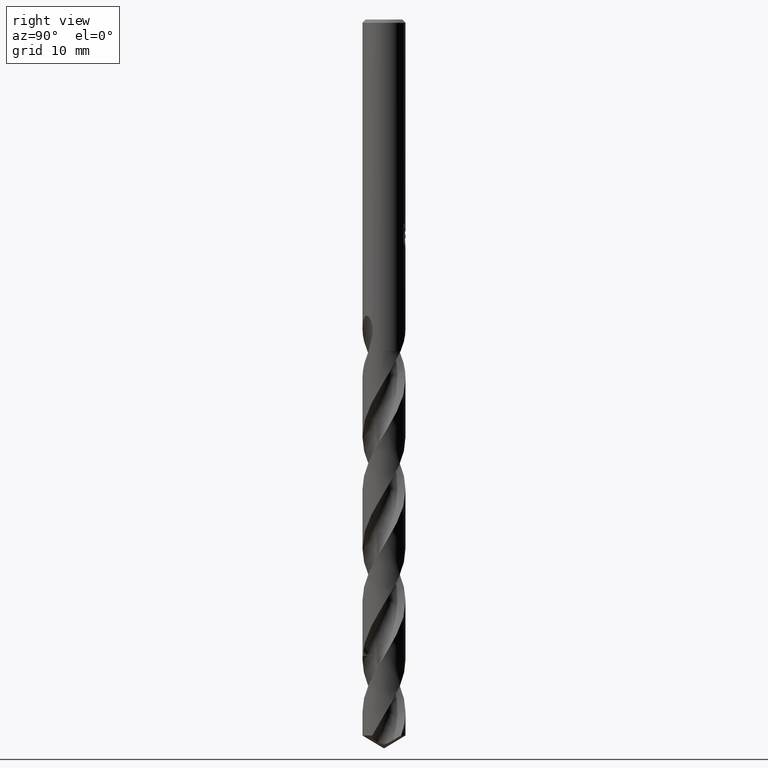
[diagram: clean part render]
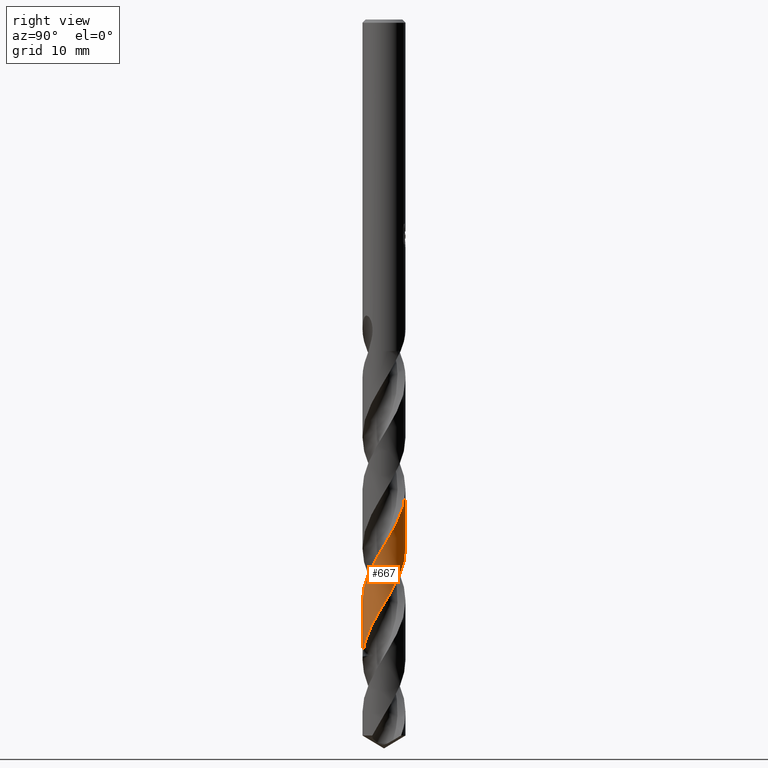
[diagram: same view with one face highlighted and labeled with its STEP entity id]
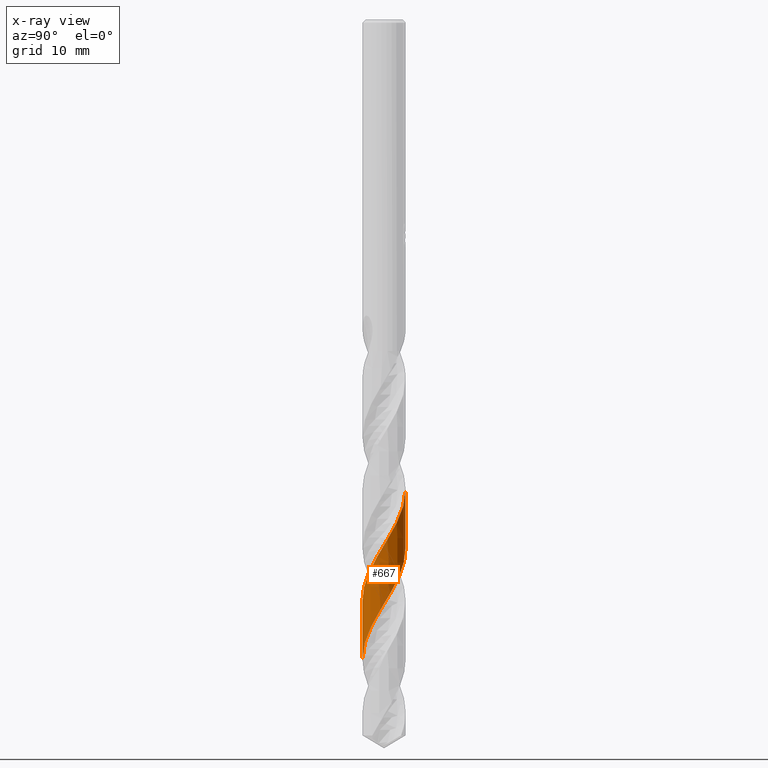
[diagram: x-ray of the same camera — body ghosted, the highlighted face saturated]
A machine part, right view. The second image highlights one B-rep face of the part: STEP entity #667.
The next image is the same camera in x-ray: the body ghosted, the highlighted face saturated — about 0% of this face is hidden behind the body in this view.
In plain terms, the highlighted conical surface has half-angle 0 deg.
Its self-contained STEP definition (entity closure, byte-faithful):
#309=EDGE_CURVE('',#739,#475,#811,.T.);
#369=VERTEX_POINT('',#879);
#475=VERTEX_POINT('',#996);
#501=VERTEX_POINT('',#1023);
#595=EDGE_CURVE('',#739,#369,#1122,.T.);
#641=EDGE_CURVE('',#501,#369,#1173,.T.);
#667=ADVANCED_FACE('',(#1202),#1203,.T.);
#739=VERTEX_POINT('',#1282);
#747=EDGE_CURVE('',#501,#475,#1290,.T.);
#811=B_SPLINE_CURVE_WITH_KNOTS('',3,(#1594,#1595,#1596,#1597,#1598,#1599,#1600,#1601,#1602,#1603,#1604,#1605,#1606,#1607,#1608,#1609,#1610,#1611,#1612,#1613,#1614,#1615,#1616,#1617,#1618,#1619,#1620,#1621,#1622,#1623,#1624,#1625,#1626,#1627,#1628,#1629,#1630,#1631,#1632,#1633,#1634,#1635,#1636,#1637,#1638,#1639,#1640,#1641,#1642,#1643,#1644,#1645,#1646,#1647,#1648,#1649,#1650,#1651,#1652,#1653,#1654,#1655,#1656,#1657,#1658,#1659,#1660,#1661,#1662,#1663,#1664,#1665,#1666,#1667,#1668,#1669,#1670,#1671,#1672,#1673,#1674,#1675,#1676,#1677,#1678,#1679,#1680,#1681,#1682,#1683,#1684,#1685,#1686,#1687,#1688,#1689,#1690,#1691,#1692,#1693,#1694,#1695,#1696,#1697,#1698,#1699,#1700,#1701,#1702,#1703,#1704,#1705,#1706,#1707,#1708,#1709,#1710,#1711,#1712,#1713,#1714,#1715,#1716,#1717,#1718,#1719,#1720,#1721,#1722,#1723,#1724,#1725,#1726,#1727,#1728,#1729,#1730,#1731,#1732,#1733,#1734,#1735,#1736,#1737,#1738,#1739,#1740,#1741,#1742,#1743,#1744,#1745,#1746,#1747,#1748,#1749,#1750,#1751,#1752,#1753,#1754,#1755,#1756,#1757,#1758,#1759,#1760,#1761,#1762,#1763,#1764,#1765,#1766,#1767,#1768,#1769,#1770,#1771,#1772,#1773,#1774,#1775,#1776,#1777,#1778,#1779,#1780,#1781,#1782,#1783,#1784,#1785,#1786,#1787,#1788,#1789,#1790,#1791,#1792,#1793,#1794,#1795,#1796,#1797),.UNSPECIFIED.,.F.,.F.,(4,2,2,2,2,2,2,2,2,2,2,2,2,2,2,2,2,2,2,2,2,2,2,2,2,2,2,2,2,2,2,2,2,2,2,2,2,2,2,2,2,2,2,2,2,2,2,2,2,2,2,2,2,2,2,2,2,2,2,2,2,2,2,2,2,2,2,2,2,2,2,2,2,2,2,2,2,2,2,2,2,2,2,2,2,2,2,2,2,2,2,2,2,2,2,2,2,2,2,2,2,4),(0.0,0.1405888205698,0.216394991786795,0.236300292407494,0.249983846285535,0.259429389356598,0.265975424439548,0.270804573506078,0.274554035474856,0.277481781632343,0.279777913392542,0.281584803043953,0.283010454703364,0.60503290062123,0.682049403185284,0.724397272747916,0.760047455491957,0.802416680387926,0.879574143514251,0.981126028274501,1.39876936985691,1.64556907397335,2.11783362049441,3.27481733163441,3.87085310820002,5.32023645803982,5.52730529986989,7.05156781157676,7.48977332265057,8.3869092067712,9.3432349947976,10.2312166141771,11.1829864606504,12.2275615192259,12.843670388438,13.6774928874183,14.1274367974353,15.0670899167883,15.9495881483009,16.863056077847,17.8026820263669,18.2772070586637,19.1413423897244,19.6220811360065,20.0860380935553,20.9599539807866,21.409249607522,21.8817758813235,22.7483417567022,23.2288788419987,23.6900579976095,24.5653216943055,25.0455394484506,25.4974334750132,26.3787372108039,26.8587133719266,27.3045349484819,28.1949272108454,28.6745559935214,29.1121346799081,30.0124518181554,30.460886470461,30.9058472945127,31.797233588102,32.2458187741204,32.6990397259773,33.5799494616418,34.0286931649105,34.4920273988983,35.3623616842336,35.8112380597172,36.2859435249657,37.1499065322594,37.6299923274806,38.0924747144397,38.9656956948758,39.4454576803068,39.898309619754,40.7803817227974,41.2597991335749,41.7037535658797,42.5925075319329,43.0716411391078,43.5090852284355,44.4063699814359,44.8543859205655,45.3006740072383,46.1896081988023,46.6377574014693,47.0921521944494,47.971210112748,48.4195001464657,48.8833843440084,49.7558381356214,50.1310224336984,50.6552667624358,51.4882473461932,52.0236394760396,52.4788877174612,53.2960245588916,54.5343650222375,55.771167645499),.UNSPECIFIED.);
#879=CARTESIAN_POINT('',(-2.42640906068125E-013,2.74995129477362,-67.4588724652077));
#996=CARTESIAN_POINT('',(4.60945622954644E-015,-2.74996498421071,-74.1732173695017));
#1023=CARTESIAN_POINT('',(6.34772045940519E-013,-2.74998023373711,-81.6527491578321));
#1122=LINE('',#5585,#5586);
#1173=B_SPLINE_CURVE_WITH_KNOTS('',3,(#6237,#6238,#6239,#6240,#6241,#6242,#6243,#6244,#6245,#6246,#6247,#6248,#6249,#6250,#6251,#6252,#6253,#6254,#6255,#6256,#6257,#6258,#6259,#6260,#6261,#6262,#6263,#6264,#6265,#6266,#6267,#6268,#6269,#6270,#6271,#6272,#6273,#6274,#6275,#6276,#6277,#6278,#6279,#6280,#6281,#6282,#6283,#6284,#6285,#6286,#6287,#6288,#6289,#6290,#6291,#6292,#6293,#6294,#6295,#6296,#6297,#6298,#6299,#6300,#6301,#6302,#6303,#6304,#6305,#6306,#6307,#6308,#6309,#6310,#6311,#6312,#6313,#6314,#6315,#6316,#6317,#6318,#6319,#6320,#6321,#6322,#6323,#6324,#6325,#6326,#6327,#6328,#6329,#6330,#6331,#6332,#6333,#6334,#6335,#6336,#6337,#6338,#6339,#6340,#6341,#6342,#6343,#6344,#6345,#6346,#6347,#6348,#6349,#6350,#6351,#6352,#6353,#6354,#6355,#6356,#6357,#6358,#6359,#6360,#6361,#6362,#6363,#6364,#6365,#6366,#6367,#6368,#6369,#6370,#6371,#6372,#6373,#6374,#6375,#6376,#6377,#6378,#6379,#6380,#6381,#6382,#6383,#6384,#6385,#6386,#6387,#6388),.UNSPECIFIED.,.F.,.F.,(4,2,2,2,2,2,2,2,2,2,2,2,2,2,2,2,2,2,2,2,2,2,2,2,2,2,2,2,2,2,2,2,2,2,2,2,2,2,2,2,2,2,2,2,2,2,2,2,2,2,2,2,2,2,2,2,2,2,2,2,2,2,2,2,2,2,2,2,2,2,2,2,2,2,2,4),(0.0,0.958681805815312,1.42279214119641,2.32930746862168,3.24913788999374,4.12304032242743,5.01878931463075,5.25202405901272,5.96763729999006,6.88346047162717,7.11253215475389,7.47354410389233,8.48621048088435,8.94993902621063,9.68170473875538,10.598395838458,11.5096810672816,12.4257870820616,13.3394869787752,14.2550886776283,15.1711346106575,16.0863519174344,17.0046875102037,17.908552272164,18.8296778654478,20.2906138123437,20.4640649237881,21.4908598715914,21.9545807363006,22.6877353423431,23.6043588789489,24.5156656541309,25.4316870207681,26.3454862811757,27.2610631012217,28.1771728333094,29.0924122235569,30.0107346831876,30.9143996937915,31.8355163388914,33.2925544368948,33.397995575221,35.1629555674127,35.268770460668,37.0380313729527,37.1437679797805,38.909193706929,39.1240337464596,40.1391152354918,40.6047423905866,41.3289674993689,42.2494400817705,43.164389895318,44.0842881901112,45.0016776785783,45.9210768897502,46.8408504294342,47.7599983011893,48.6819105653841,49.5859521010791,50.4954006095454,51.9193197153672,52.2554059075076,53.7306043602826,54.0227556725261,55.65758917962,55.8850928940582,56.2603297209349,56.5445848864106,56.7947378977215,57.244212176911,57.5625683427663,57.8917810464677,58.379247001858,59.7268337386571,62.3682746175607),.UNSPECIFIED.);
#1202=FACE_OUTER_BOUND('',#6448,.T.);
#1203=CONICAL_SURFACE('',#6449,2.74995,2.03883435910483E-006);
#1282=CARTESIAN_POINT('',(3.38451712254975E-015,2.74993604513518,-59.9792857280729));
#1290=LINE('',#8797,#8798);
#1594=CARTESIAN_POINT('',(1.9113919779581,-1.97700044832148,-42.305));
#1595=CARTESIAN_POINT('',(1.89474394006093,-1.99309612221771,-42.3457419596883));
#1596=CARTESIAN_POINT('',(1.87783038372184,-2.00904245237869,-42.3865415340462));
#1597=CARTESIAN_POINT('',(1.85130960971047,-2.03341181445463,-42.4492797022963));
#1598=CARTESIAN_POINT('',(1.84193920612505,-2.04190433827405,-42.4712189938615));
#1599=CARTESIAN_POINT('',(1.82997803974242,-2.05259439376669,-42.4989100176258));
#1600=CARTESIAN_POINT('',(1.82748413525274,-2.05481512941385,-42.5046666530148));
#1601=CARTESIAN_POINT('',(1.8232643826086,-2.0585588857746,-42.5143779523041));
#1602=CARTESIAN_POINT('',(1.82154226389148,-2.06008289526219,-42.5183330986299));
#1603=CARTESIAN_POINT('',(1.81862595975771,-2.06265718802053,-42.5250170321673));
#1604=CARTESIAN_POINT('',(1.81743350735866,-2.06370795869513,-42.5277461346762));
#1605=CARTESIAN_POINT('',(1.81541205586707,-2.06548611650552,-42.5323658748203));
#1606=CARTESIAN_POINT('',(1.81458387028904,-2.06621374273256,-42.5342566916006));
#1607=CARTESIAN_POINT('',(1.81314343518799,-2.06747774327473,-42.5375420383264));
#1608=CARTESIAN_POINT('',(1.8125315277529,-2.0680142196638,-42.5389366493334));
#1609=CARTESIAN_POINT('',(1.81144380916359,-2.06896699893719,-42.5414138592091));
#1610=CARTESIAN_POINT('',(1.81096816031216,-2.06938335048113,-42.5424964978286));
#1611=CARTESIAN_POINT('',(1.81012067304029,-2.07012466859978,-42.5444243800846));
#1612=CARTESIAN_POINT('',(1.80974893048805,-2.0704496643831,-42.5452696485468));
#1613=CARTESIAN_POINT('',(1.80908537964099,-2.07102945810663,-42.5467777527065));
#1614=CARTESIAN_POINT('',(1.80879362874,-2.07128427390206,-42.5474406042127));
#1615=CARTESIAN_POINT('',(1.80827212875344,-2.07173955872689,-42.5486250223759));
#1616=CARTESIAN_POINT('',(1.80804241453122,-2.07194003869847,-42.549146598913));
#1617=CARTESIAN_POINT('',(1.8076313531829,-2.07229866647212,-42.5500796729189));
#1618=CARTESIAN_POINT('',(1.80745002791834,-2.07245682060731,-42.550491175479));
#1619=CARTESIAN_POINT('',(1.7663034845622,-2.10833583495604,-42.6438493346533));
#1620=CARTESIAN_POINT('',(1.72450002096002,-2.14270816186211,-42.7340307008017));
#1621=CARTESIAN_POINT('',(1.66949735190735,-2.18515778825355,-42.8473510876544));
#1622=CARTESIAN_POINT('',(1.65879549134177,-2.19329340667156,-42.8691709178403));
#1623=CARTESIAN_POINT('',(1.64205484810893,-2.20582585225097,-42.9029832185836));
#1624=CARTESIAN_POINT('',(1.63609024784608,-2.21025359588519,-42.9149685820672));
#1625=CARTESIAN_POINT('',(1.62505438196416,-2.21837657675354,-42.9370386361615));
#1626=CARTESIAN_POINT('',(1.61999310877757,-2.22207537546271,-42.9471199726786));
#1627=CARTESIAN_POINT('',(1.60887728777353,-2.23014058076995,-42.9691789655198));
#1628=CARTESIAN_POINT('',(1.6028180513267,-2.23449944370658,-42.9811504921259));
#1629=CARTESIAN_POINT('',(1.58565792644363,-2.2467380997438,-43.0149204191342));
#1630=CARTESIAN_POINT('',(1.57451437672465,-2.25456169358418,-43.0366928489187));
#1631=CARTESIAN_POINT('',(1.54854940156484,-2.27250417865209,-43.0871409343948));
#1632=CARTESIAN_POINT('',(1.53350788819832,-2.28268499421429,-43.1161557840904));
#1633=CARTESIAN_POINT('',(1.45512934109161,-2.3345829022232,-43.2671417222764));
#1634=CARTESIAN_POINT('',(1.3908128566078,-2.37342684165148,-43.3896236929404));
#1635=CARTESIAN_POINT('',(1.2869397579637,-2.43057393312828,-43.5840942156619));
#1636=CARTESIAN_POINT('',(1.24790541061127,-2.45084182393506,-43.6564587496845));
#1637=CARTESIAN_POINT('',(1.13297941871654,-2.50706725057567,-43.867173073565));
#1638=CARTESIAN_POINT('',(1.0557792000135,-2.54054582440721,-44.0056649375604));
#1639=CARTESIAN_POINT('',(0.784564997989086,-2.64365035995048,-44.4832395217171));
#1640=CARTESIAN_POINT('',(0.584195318456836,-2.69505218150796,-44.8203688003068));
#1641=CARTESIAN_POINT('',(0.274421237762536,-2.73824505833185,-45.3337434967377));
#1642=CARTESIAN_POINT('',(0.168420955404953,-2.7467972019966,-45.5081578995366));
#1643=CARTESIAN_POINT('',(-0.195869085962555,-2.75504923613418,-46.1075344877658));
#1644=CARTESIAN_POINT('',(-0.453781926031771,-2.72451261647946,-46.5304586911943));
#1645=CARTESIAN_POINT('',(-0.739517481339404,-2.64886429644569,-47.0155985114954));
#1646=CARTESIAN_POINT('',(-0.775034309947221,-2.63869096522714,-47.0762139879483));
#1647=CARTESIAN_POINT('',(-1.07018737070248,-2.54767586459963,-47.5833962948189));
#1648=CARTESIAN_POINT('',(-1.31678658888828,-2.42941522733678,-48.0282795629802));
#1649=CARTESIAN_POINT('',(-1.60672203759191,-2.23306484325836,-48.6032562262966));
#1650=CARTESIAN_POINT('',(-1.669535372013,-2.18649912957423,-48.7315508839089));
#1651=CARTESIAN_POINT('',(-1.8545904733248,-2.03669043337372,-49.1229292962684));
#1652=CARTESIAN_POINT('',(-1.96993633821895,-1.9253558560842,-49.3856035579719));
#1653=CARTESIAN_POINT('',(-2.18692301558826,-1.67586086087065,-49.9287683484514));
#1654=CARTESIAN_POINT('',(-2.2866294723665,-1.53702520140383,-50.2079792637998));
#1655=CARTESIAN_POINT('',(-2.4528556983315,-1.2532428335625,-50.7485746874489));
#1656=CARTESIAN_POINT('',(-2.52096149598795,-1.10991087013021,-51.0085634113004));
#1657=CARTESIAN_POINT('',(-2.6357309977583,-0.802379586594009,-51.5477452732993));
#1658=CARTESIAN_POINT('',(-2.68022280808353,-0.63817616950051,-51.8257033090554));
#1659=CARTESIAN_POINT('',(-2.74119326287026,-0.287438269954071,-52.4109303219184));
#1660=CARTESIAN_POINT('',(-2.75437976484117,-0.101067872585334,-52.7165328563769));
#1661=CARTESIAN_POINT('',(-2.74519013892443,0.195177835658482,-53.2032351699046));
#1662=CARTESIAN_POINT('',(-2.73519345185738,0.304745719376111,-53.3834659651226));
#1663=CARTESIAN_POINT('',(-2.6963118187981,0.560451065472748,-53.8085126276962));
#1664=CARTESIAN_POINT('',(-2.66205444677724,0.705464527740272,-54.052800351327));
#1665=CARTESIAN_POINT('',(-2.59150651604092,0.923376732583466,-54.4291380827176));
#1666=CARTESIAN_POINT('',(-2.56344184396405,0.998651263110096,-54.5609479975323));
#1667=CARTESIAN_POINT('',(-2.46669018763538,1.22705591190939,-54.9682336586689));
#1668=CARTESIAN_POINT('',(-2.38730089274094,1.37512661040729,-55.2431135990258));
#1669=CARTESIAN_POINT('',(-2.20827002566093,1.64633402880228,-55.7773690935644));
#1670=CARTESIAN_POINT('',(-2.11040615718618,1.77005849500511,-56.0355932008346));
#1671=CARTESIAN_POINT('',(-1.89067253982802,2.00351113474732,-56.5619845494201));
#1672=CARTESIAN_POINT('',(-1.7686217924635,2.11202037248355,-56.82924682089));
#1673=CARTESIAN_POINT('',(-1.50313817972528,2.30884745552287,-57.3725790441412));
#1674=CARTESIAN_POINT('',(-1.35961834233583,2.39618350239763,-57.6474375668075));
#1675=CARTESIAN_POINT('',(-1.13287842953984,2.5071674943401,-58.0619183446269));
#1676=CARTESIAN_POINT('',(-1.05514540735717,2.5408587124427,-58.2008468237029));
#1677=CARTESIAN_POINT('',(-0.831876263064846,2.62562001204044,-58.5933388595663));
#1678=CARTESIAN_POINT('',(-0.683376762788344,2.66812906621509,-58.846504038187));
#1679=CARTESIAN_POINT('',(-0.447910487903869,2.71456741934875,-59.2408012373047));
#1680=CARTESIAN_POINT('',(-0.362991399834257,2.72722305004022,-59.3816313924091));
#1681=CARTESIAN_POINT('',(-0.195189431863267,2.74424983659565,-59.6585536373299));
#1682=CARTESIAN_POINT('',(-0.112476859463198,2.74888115917312,-59.7944161401423));
#1683=CARTESIAN_POINT('',(0.126214150943173,2.75146019836174,-60.1867313002802));
#1684=CARTESIAN_POINT('',(0.282024586169444,2.7398805824675,-60.442782022897));
#1685=CARTESIAN_POINT('',(0.515210291089281,2.70243353210751,-60.8307755905374));
#1686=CARTESIAN_POINT('',(0.59381081744782,2.6862584245571,-60.9624234787841));
#1687=CARTESIAN_POINT('',(0.753428137239964,2.64605885527465,-61.2326766391291));
#1688=CARTESIAN_POINT('',(0.834223600104588,2.6217064907744,-61.3710584904469));
#1689=CARTESIAN_POINT('',(1.05960442555118,2.54230589525037,-61.7637809684087));
#1690=CARTESIAN_POINT('',(1.20089022169279,2.47870169109387,-62.0177213620274));
#1691=CARTESIAN_POINT('',(1.41106702874328,2.36186862940674,-62.4127747618289));
#1692=CARTESIAN_POINT('',(1.48406641278384,2.31669778838812,-62.5535822067439));
#1693=CARTESIAN_POINT('',(1.62278133939124,2.22160846656739,-62.8297032787065));
#1694=CARTESIAN_POINT('',(1.68855917511638,2.17203223167206,-62.9647900308495));
#1695=CARTESIAN_POINT('',(1.87240158281132,2.02007411706699,-63.356788633596));
#1696=CARTESIAN_POINT('',(1.98413085433862,1.91045346135799,-63.6132987877914));
#1697=CARTESIAN_POINT('',(2.14182375594935,1.72688593199706,-64.0108580056777));
#1698=CARTESIAN_POINT('',(2.19463072473674,1.65926124755656,-64.1515883572507));
#1699=CARTESIAN_POINT('',(2.29084738489305,1.52339456202346,-64.4249287353814));
#1700=CARTESIAN_POINT('',(2.33455206445347,1.45553155338031,-64.5573216761763));
#1701=CARTESIAN_POINT('',(2.45447696812206,1.24999660238107,-64.9484219105953));
#1702=CARTESIAN_POINT('',(2.52196614731941,1.10754566908649,-65.2067278144275));
#1703=CARTESIAN_POINT('',(2.60682919650331,0.879771625928242,-65.6060386669693));
#1704=CARTESIAN_POINT('',(2.63298650797004,0.798089162872596,-65.7467156653936));
#1705=CARTESIAN_POINT('',(2.67600440469714,0.63840326705512,-66.018240362704));
#1706=CARTESIAN_POINT('',(2.69336122980882,0.560674912764488,-66.1488784175145));
#1707=CARTESIAN_POINT('',(2.73519859808911,0.325843484944745,-66.540916076529));
#1708=CARTESIAN_POINT('',(2.74946414075377,0.167201550768947,-66.8019063921268));
#1709=CARTESIAN_POINT('',(2.7501937002964,-0.0774638261031339,-67.2038300691914));
#1710=CARTESIAN_POINT('',(2.74644712040355,-0.16310016436869,-67.3444216233739));
#1711=CARTESIAN_POINT('',(2.73164356870504,-0.326295621560419,-67.6134612941062));
#1712=CARTESIAN_POINT('',(2.72126769689355,-0.403782627974828,-67.7417092902315));
#1713=CARTESIAN_POINT('',(2.67951545894662,-0.638961959563483,-68.1342911331126));
#1714=CARTESIAN_POINT('',(2.63758948178162,-0.794495866520071,-68.3982081367714));
#1715=CARTESIAN_POINT('',(2.55476145921537,-1.02071366472638,-68.7939374121352));
#1716=CARTESIAN_POINT('',(2.52394478063379,-1.09470157449819,-68.9254132317198));
#1717=CARTESIAN_POINT('',(2.45618755996604,-1.23923981454786,-69.1875008432771));
#1718=CARTESIAN_POINT('',(2.41934916908386,-1.30970037113829,-69.3179202368134));
#1719=CARTESIAN_POINT('',(2.29974105763656,-1.51617333909455,-69.7100953321138));
#1720=CARTESIAN_POINT('',(2.20813200812977,-1.64674464810601,-69.9714404616227));
#1721=CARTESIAN_POINT('',(2.05418263772301,-1.8300326710312,-70.3646463306028));
#1722=CARTESIAN_POINT('',(1.99997745438958,-1.88912217162523,-70.4961844778617));
#1723=CARTESIAN_POINT('',(1.88594987150108,-2.00300323322457,-70.7607733791473));
#1724=CARTESIAN_POINT('',(1.82616663004955,-2.05765328256967,-70.8936218102423));
#1725=CARTESIAN_POINT('',(1.64339526518123,-2.21049212739435,-71.2851955355961));
#1726=CARTESIAN_POINT('',(1.51424840382901,-2.3008905203928,-71.5435176541091));
#1727=CARTESIAN_POINT('',(1.30868152065014,-2.41993018331995,-71.9337504721185));
#1728=CARTESIAN_POINT('',(1.2375673720955,-2.45705986237434,-72.0653542249686));
#1729=CARTESIAN_POINT('',(1.08990415256941,-2.52611424819598,-72.3329926056456));
#1730=CARTESIAN_POINT('',(1.01337614790465,-2.5577735661123,-72.4688131634076));
#1731=CARTESIAN_POINT('',(0.789379538072811,-2.6388136166066,-72.8603019282026));
#1732=CARTESIAN_POINT('',(0.63895040550252,-2.67921990887225,-73.1155722525148));
#1733=CARTESIAN_POINT('',(0.406954109086845,-2.72086759944534,-73.5027963983602));
#1734=CARTESIAN_POINT('',(0.32741597064418,-2.73158158132785,-73.6344589088095));
#1735=CARTESIAN_POINT('',(0.162997579529246,-2.74644063809838,-73.9055103266378));
#1736=CARTESIAN_POINT('',(0.078214985173939,-2.75015985950933,-74.0446729615929));
#1737=CARTESIAN_POINT('',(-0.160917234439024,-2.74958814900042,-74.4376802682549));
#1738=CARTESIAN_POINT('',(-0.314976323942263,-2.73622686362586,-74.6911243853756));
#1739=CARTESIAN_POINT('',(-0.551657581705262,-2.6954315217074,-75.0856939209393));
#1740=CARTESIAN_POINT('',(-0.635489120279629,-2.67690847482696,-75.2265162647323));
#1741=CARTESIAN_POINT('',(-0.798144680267352,-2.6328925700558,-75.5031755458804));
#1742=CARTESIAN_POINT('',(-0.876906486363475,-2.60771659669421,-75.6387837316087));
#1743=CARTESIAN_POINT('',(-1.10070667411271,-2.5248982512672,-76.0309740169478));
#1744=CARTESIAN_POINT('',(-1.24217562457316,-2.45839102419978,-76.2871544246579));
#1745=CARTESIAN_POINT('',(-1.45147096822769,-2.33728893012035,-76.6843952049423));
#1746=CARTESIAN_POINT('',(-1.52365291606915,-2.29089005816789,-76.8251388998423));
#1747=CARTESIAN_POINT('',(-1.65955162538259,-2.1942617501723,-77.0989116329874));
#1748=CARTESIAN_POINT('',(-1.72340872045935,-2.14446994467036,-77.2317225257685));
#1749=CARTESIAN_POINT('',(-1.90485749778996,-1.98964926459245,-77.6237362394006));
#1750=CARTESIAN_POINT('',(-2.01576350601074,-1.87720699790109,-77.882533566667));
#1751=CARTESIAN_POINT('',(-2.17115278815238,-1.68990909341758,-78.2823201115429));
#1752=CARTESIAN_POINT('',(-2.22276786485047,-1.62142154853402,-78.4229789593094));
#1753=CARTESIAN_POINT('',(-2.31587392654352,-1.4850551149676,-78.6940733249445));
#1754=CARTESIAN_POINT('',(-2.35776021676426,-1.41761077130549,-78.8243002731736));
#1755=CARTESIAN_POINT('',(-2.47454168925714,-1.21005421844212,-79.2157155503087));
#1756=CARTESIAN_POINT('',(-2.54030190317214,-1.06511874461022,-79.4764969908132));
#1757=CARTESIAN_POINT('',(-2.62169538972225,-0.834518865005186,-79.8782118966825));
#1758=CARTESIAN_POINT('',(-2.64642140029098,-0.752442447591078,-80.0188043213907));
#1759=CARTESIAN_POINT('',(-2.68632045961951,-0.593446752205955,-80.2879387450646));
#1760=CARTESIAN_POINT('',(-2.70210792686857,-0.516819360207159,-80.4162799377955));
#1761=CARTESIAN_POINT('',(-2.74024497345749,-0.281345626327241,-80.8083402238175));
#1762=CARTESIAN_POINT('',(-2.75199325376187,-0.121065757683742,-81.0716455861038));
#1763=CARTESIAN_POINT('',(-2.74855199747863,0.119448376949672,-81.4667745785083));
#1764=CARTESIAN_POINT('',(-2.74390659820031,0.199471578072976,-81.5982649708547));
#1765=CARTESIAN_POINT('',(-2.72766699037952,0.358606508175501,-81.8608928710411));
#1766=CARTESIAN_POINT('',(-2.71611267775385,0.437596312842399,-81.991836070737));
#1767=CARTESIAN_POINT('',(-2.67133530843406,0.672022285024964,-82.3840899926981));
#1768=CARTESIAN_POINT('',(-2.62804609208245,0.825253922700883,-82.6449908262573));
#1769=CARTESIAN_POINT('',(-2.54337043982072,1.04885446626838,-83.0377595462506));
#1770=CARTESIAN_POINT('',(-2.511721921968,1.12253660610581,-83.1693073923044));
#1771=CARTESIAN_POINT('',(-2.44157685214707,1.26795949622957,-83.4343893650016));
#1772=CARTESIAN_POINT('',(-2.4030477475849,1.33954209997397,-83.5677195102892));
#1773=CARTESIAN_POINT('',(-2.28088321531569,1.54424257199892,-83.9595025880772));
#1774=CARTESIAN_POINT('',(-2.18891001119647,1.67206706183911,-84.2175521152664));
#1775=CARTESIAN_POINT('',(-2.03427861914448,1.85217777477793,-84.6075147745101));
#1776=CARTESIAN_POINT('',(-1.9794086908816,1.91070669018203,-84.7391226858253));
#1777=CARTESIAN_POINT('',(-1.86268918975683,2.02477310893334,-85.0070681627608));
#1778=CARTESIAN_POINT('',(-1.80076055697322,2.08004115105205,-85.1431906731098));
#1779=CARTESIAN_POINT('',(-1.61548422105485,2.23091450546937,-85.5358706033196));
#1780=CARTESIAN_POINT('',(-1.48633534320077,2.31896438084061,-85.7920250241943));
#1781=CARTESIAN_POINT('',(-1.29194062212565,2.42854574054473,-86.1586210491085));
#1782=CARTESIAN_POINT('',(-1.23228524383696,2.45935414815032,-86.2688061831526));
#1783=CARTESIAN_POINT('',(-1.08668505932332,2.52791626920885,-86.5330478458377));
#1784=CARTESIAN_POINT('',(-0.999861791233126,2.56349629007016,-86.6868511400935));
#1785=CARTESIAN_POINT('',(-0.770868170427301,2.64393719981579,-87.0857111524467));
#1786=CARTESIAN_POINT('',(-0.626525284399861,2.68181296312368,-87.3303532517709));
#1787=CARTESIAN_POINT('',(-0.385518083117312,2.7245194781435,-87.7324854813987));
#1788=CARTESIAN_POINT('',(-0.290388610232438,2.73629611156489,-87.8896671414771));
#1789=CARTESIAN_POINT('',(-0.113544712617398,2.74885612084318,-88.180733258292));
#1790=CARTESIAN_POINT('',(-0.0320950189670139,2.75101158915515,-88.3143554714949));
#1791=CARTESIAN_POINT('',(0.195425291048735,2.74693206123086,-88.6883444671099));
#1792=CARTESIAN_POINT('',(0.341118259478591,2.7326682665529,-88.9283773388001));
#1793=CARTESIAN_POINT('',(0.703031739928644,2.66782545549403,-89.5325387880678));
#1794=CARTESIAN_POINT('',(0.915536538189728,2.60256150735421,-89.894741714504));
#1795=CARTESIAN_POINT('',(1.31998122904968,2.4226162543173,-90.6222890543741));
#1796=CARTESIAN_POINT('',(1.51056826074001,2.30861032399821,-90.9842150948816));
#1797=CARTESIAN_POINT('',(1.68548165781924,2.17293616591811,-91.3476332976742));
#5585=CARTESIAN_POINT('',(-3.36394821423106E-016,2.74995,-66.8238166488371));
#5586=VECTOR('',#9200,1.0);
#6237=CARTESIAN_POINT('',(-2.30821754607022,1.49486847582441,-91.3476332976742));
#6238=CARTESIAN_POINT('',(-2.39813306921655,1.35602942439577,-91.0742143978026));
#6239=CARTESIAN_POINT('',(-2.47557424855424,1.20900492490617,-90.8026011027784));
#6240=CARTESIAN_POINT('',(-2.57031388864011,0.981050468829349,-90.3977903205838));
#6241=CARTESIAN_POINT('',(-2.59791787231717,0.90541632651793,-90.2659170645135));
#6242=CARTESIAN_POINT('',(-2.66949317809536,0.678945005793541,-89.8757742451931));
#6243=CARTESIAN_POINT('',(-2.70392030254306,0.525379127621132,-89.6167697743954));
#6244=CARTESIAN_POINT('',(-2.7464934438947,0.21144244624623,-89.0969069422354));
#6245=CARTESIAN_POINT('',(-2.7541239683928,0.0518270490662676,-88.8364750108671));
#6246=CARTESIAN_POINT('',(-2.74197459076468,-0.258805056860381,-88.3257892797205));
#6247=CARTESIAN_POINT('',(-2.72358160200451,-0.409294119640273,-88.0759009482005));
#6248=CARTESIAN_POINT('',(-2.66136504572146,-0.709725940754269,-87.5720495134791));
#6249=CARTESIAN_POINT('',(-2.6170466888386,-0.858865974857176,-87.3183914227146));
#6250=CARTESIAN_POINT('',(-2.54560370924761,-1.04114786538986,-86.9970309684515));
#6251=CARTESIAN_POINT('',(-2.53002778070445,-1.07844348045791,-86.9306469953702));
#6252=CARTESIAN_POINT('',(-2.46340235383821,-1.22859477553646,-86.6603936895895));
#6253=CARTESIAN_POINT('',(-2.40550130304601,-1.33844310580952,-86.4556703556514));
#6254=CARTESIAN_POINT('',(-2.25682953390075,-1.57937258302822,-85.9907162208236));
#6255=CARTESIAN_POINT('',(-2.16180152006436,-1.70713760577023,-85.7311718327511));
#6256=CARTESIAN_POINT('',(-2.02985243392072,-1.85572446282477,-85.4049597736878));
#6257=CARTESIAN_POINT('',(-2.00283225872068,-1.88485308173551,-85.3396952538941));
#6258=CARTESIAN_POINT('',(-1.93168981762699,-1.95829477796711,-85.1714602762938));
#6259=CARTESIAN_POINT('',(-1.88671835845457,-2.00165349104521,-85.0683266713577));
#6260=CARTESIAN_POINT('',(-1.71029857194183,-2.16054115228335,-84.6770927117539));
#6261=CARTESIAN_POINT('',(-1.56915067511704,-2.26517972635162,-84.3906732040299));
#6262=CARTESIAN_POINT('',(-1.3497799964149,-2.39728610162157,-83.9708727428107));
#6263=CARTESIAN_POINT('',(-1.27917440656054,-2.43568596496154,-83.8391543391244));
#6264=CARTESIAN_POINT('',(-1.09332213132662,-2.52647752005241,-83.4989133190233));
#6265=CARTESIAN_POINT('',(-0.975757004811515,-2.57418069217549,-83.2897401144252));
#6266=CARTESIAN_POINT('',(-0.704105912343169,-2.66306254338743,-82.8203449859003));
#6267=CARTESIAN_POINT('',(-0.549038439318009,-2.69930179955354,-82.5607829045008));
#6268=CARTESIAN_POINT('',(-0.23526476410533,-2.74445274725601,-82.0403917480666));
#6269=CARTESIAN_POINT('',(-0.0773708193472299,-2.75342515383934,-81.7798437050269));
#6270=CARTESIAN_POINT('',(0.239199856126425,-2.74415351665203,-81.2596164314754));
#6271=CARTESIAN_POINT('',(0.397229640060813,-2.72577050057027,-81.000283276128));
#6272=CARTESIAN_POINT('',(0.708028120251699,-2.66198688603787,-80.4795522035518));
#6273=CARTESIAN_POINT('',(0.85998972653542,-2.61683778657722,-80.2184033909547));
#6274=CARTESIAN_POINT('',(1.15482483907513,-2.50077997044908,-79.6978116542654));
#6275=CARTESIAN_POINT('',(1.29714095658933,-2.43001687980687,-79.4387139160865));
#6276=CARTESIAN_POINT('',(1.56815797350757,-2.26460943096369,-78.9176991767255));
#6277=CARTESIAN_POINT('',(1.69610578656144,-2.17042037692973,-78.656012258539));
#6278=CARTESIAN_POINT('',(1.93421744074749,-1.96118613042145,-78.1351019191418));
#6279=CARTESIAN_POINT('',(2.04401554034506,-1.84648276335595,-77.8762339909581));
#6280=CARTESIAN_POINT('',(2.24306264663102,-1.59885393608981,-77.3549757314927));
#6281=CARTESIAN_POINT('',(2.33167241550774,-1.46658535012565,-77.0928087434372));
#6282=CARTESIAN_POINT('',(2.48381118115276,-1.19056970541227,-76.5747747035926));
#6283=CARTESIAN_POINT('',(2.5475105605257,-1.04739081103074,-76.3192329196145));
#6284=CARTESIAN_POINT('',(2.65089197542832,-0.748697799832752,-75.8007657978822));
#6285=CARTESIAN_POINT('',(2.68978422713963,-0.59389731270363,-75.5380292530808));
#6286=CARTESIAN_POINT('',(2.75515205450264,-0.187539803321021,-74.8613143927137));
#6287=CARTESIAN_POINT('',(2.76068453919403,0.0657368174657312,-74.4518718245259));
#6288=CARTESIAN_POINT('',(2.728333209592,0.345538367115945,-73.9873240091164));
#6289=CARTESIAN_POINT('',(2.72441789520585,0.375167255738773,-73.9379837810086));
#6290=CARTESIAN_POINT('',(2.69388218176549,0.580335136820753,-73.5961101802849));
#6291=CARTESIAN_POINT('',(2.65079213169592,0.753205390629295,-73.3057178228955));
#6292=CARTESIAN_POINT('',(2.56420313567536,0.996807280685951,-72.8818844154437));
#6293=CARTESIAN_POINT('',(2.53398505870435,1.07128375482136,-72.7501628143418));
#6294=CARTESIAN_POINT('',(2.4478157236499,1.25959429079978,-72.4095153649321));
#6295=CARTESIAN_POINT('',(2.3870702292321,1.37125499573308,-72.1999369625965));
#6296=CARTESIAN_POINT('',(2.23328305921761,1.61244707448642,-71.7301531617465));
#6297=CARTESIAN_POINT('',(2.13637993729925,1.73880023617543,-71.4706041944203));
#6298=CARTESIAN_POINT('',(1.92242024882629,1.97270062786646,-70.9502147168827));
#6299=CARTESIAN_POINT('',(1.80602918851017,2.07977678339419,-70.6896537420033));
#6300=CARTESIAN_POINT('',(1.55539613486991,2.27336945844012,-70.1694331613541));
#6301=CARTESIAN_POINT('',(1.42156621530852,2.35937227411201,-69.9101184999956));
#6302=CARTESIAN_POINT('',(1.14080976416949,2.50717231639463,-69.3893764648051));
#6303=CARTESIAN_POINT('',(0.994665222722494,2.56864659677081,-69.1281983224969));
#6304=CARTESIAN_POINT('',(0.693085679765642,2.66590101308757,-68.6075783923704));
#6305=CARTESIAN_POINT('',(0.538173908993293,2.70144426366461,-68.3484836496351));
#6306=CARTESIAN_POINT('',(0.22371526854381,2.7454338882113,-67.8274526654317));
#6307=CARTESIAN_POINT('',(0.0650397420399398,2.75375187307394,-67.5657471735906));
#6308=CARTESIAN_POINT('',(-0.251777723434901,2.74297902394156,-67.0448067644577));
#6309=CARTESIAN_POINT('',(-0.409420783423291,2.72392184584383,-66.7859295177178));
#6310=CARTESIAN_POINT('',(-0.720366992920601,2.65868593162778,-66.2646616475052));
#6311=CARTESIAN_POINT('',(-0.872758964671253,2.61261080659185,-66.0024939905703));
#6312=CARTESIAN_POINT('',(-1.16539671377829,2.49569413844514,-65.4845135875483));
#6313=CARTESIAN_POINT('',(-1.30541779716352,2.42540436787378,-65.2290248629089));
#6314=CARTESIAN_POINT('',(-1.57474732149467,2.26004917222067,-64.7106097679212));
#6315=CARTESIAN_POINT('',(-1.70298907438229,2.16503003272228,-64.4478705184512));
#6316=CARTESIAN_POINT('',(-2.01072767439289,1.89276002702256,-63.7722577841829));
#6317=CARTESIAN_POINT('',(-2.17526254201808,1.7010221204713,-63.3638765204408));
#6318=CARTESIAN_POINT('',(-2.32116420254706,1.47468918658655,-62.9197749480122));
#6319=CARTESIAN_POINT('',(-2.33084256786077,1.45934352292707,-62.8898187421614));
#6320=CARTESIAN_POINT('',(-2.49996282128473,1.18521736010175,-62.3584896171692));
#6321=CARTESIAN_POINT('',(-2.61547920229598,0.902057203246326,-61.8671402175079));
#6322=CARTESIAN_POINT('',(-2.68640204146373,0.587995909508269,-61.3361617246149));
#6323=CARTESIAN_POINT('',(-2.6902306860309,0.570221918286549,-61.3061415897568));
#6324=CARTESIAN_POINT('',(-2.75499568550897,0.254376329692763,-60.7742838812045));
#6325=CARTESIAN_POINT('',(-2.76621336405418,-0.0515212944125087,-60.2824940642411));
#6326=CARTESIAN_POINT('',(-2.72484641278976,-0.371063174294055,-59.7511145331027));
#6327=CARTESIAN_POINT('',(-2.72233919491299,-0.389029932118128,-59.7211616879775));
#6328=CARTESIAN_POINT('',(-2.67478809196025,-0.706779558499717,-59.191170094757));
#6329=CARTESIAN_POINT('',(-2.58071566433337,-0.99690902232106,-58.7010782107867));
#6330=CARTESIAN_POINT('',(-2.42428109793209,-1.29859465795856,-58.1406718494868));
#6331=CARTESIAN_POINT('',(-2.40665655874004,-1.33097653154394,-58.0798062598172));
#6332=CARTESIAN_POINT('',(-2.30172397601894,-1.51483161452267,-57.7310150591565));
#6333=CARTESIAN_POINT('',(-2.20072633576062,-1.65820865024731,-57.4451356774282));
#6334=CARTESIAN_POINT('',(-2.03415604635327,-1.85223941860013,-57.025887002749));
#6335=CARTESIAN_POINT('',(-1.97919152334522,-1.91085011542945,-56.8941861793768));
#6336=CARTESIAN_POINT('',(-1.83258785958547,-2.0540924309317,-56.5569709508111));
#6337=CARTESIAN_POINT('',(-1.73742174226356,-2.13520760354762,-56.3508109885737));
#6338=CARTESIAN_POINT('',(-1.50922508335764,-2.30425773298295,-55.8844076741192));
#6339=CARTESIAN_POINT('',(-1.37354768258227,-2.38762154473313,-55.6248445041689));
#6340=CARTESIAN_POINT('',(-1.09012437582599,-2.529563313169,-55.1044759903738));
#6341=CARTESIAN_POINT('',(-0.943167679670527,-2.58794584082736,-54.8439536880756));
#6342=CARTESIAN_POINT('',(-0.639892832252144,-2.67914739469713,-54.3237454073419));
#6343=CARTESIAN_POINT('',(-0.484146719459574,-2.7116261330437,-54.0644060462614));
#6344=CARTESIAN_POINT('',(-0.169128667225479,-2.74928473300121,-53.5436880878991));
#6345=CARTESIAN_POINT('',(-0.0106999946258587,-2.75445138826839,-53.2825596548368));
#6346=CARTESIAN_POINT('',(0.305696127266455,-2.73747526517724,-52.7619791431815));
#6347=CARTESIAN_POINT('',(0.463084717637374,-2.71529169665932,-52.5028728752574));
#6348=CARTESIAN_POINT('',(0.772474095817102,-2.64396575251582,-51.9818599465187));
#6349=CARTESIAN_POINT('',(0.923617810695677,-2.59501938845856,-51.7201880157271));
#6350=CARTESIAN_POINT('',(1.21565424852494,-2.47170795251708,-51.199239657333));
#6351=CARTESIAN_POINT('',(1.3560857633583,-2.39754758806331,-50.940320515682));
#6352=CARTESIAN_POINT('',(1.62314319670921,-2.22547857713806,-50.4190593180796));
#6353=CARTESIAN_POINT('',(1.74896587708762,-2.12799791639435,-50.1569304313289));
#6354=CARTESIAN_POINT('',(1.98003809138847,-1.91461011936557,-49.6399474717182));
#6355=CARTESIAN_POINT('',(2.08533345928379,-1.79936972901445,-49.3854004202197));
#6356=CARTESIAN_POINT('',(2.27595381173141,-1.55134370890724,-48.8723092546425));
#6357=CARTESIAN_POINT('',(2.3605890120182,-1.41919485581139,-48.6139983913061));
#6358=CARTESIAN_POINT('',(2.54752811732254,-1.06400600944195,-47.9538420818226));
#6359=CARTESIAN_POINT('',(2.63203923029517,-0.833182298870286,-47.556103686014));
#6360=CARTESIAN_POINT('',(2.69737945481106,-0.538033155561621,-47.0581058401103));
#6361=CARTESIAN_POINT('',(2.70807779683998,-0.481316837727385,-46.9628535278469));
#6362=CARTESIAN_POINT('',(2.75618071451278,-0.173166378541672,-46.4496739616422));
#6363=CARTESIAN_POINT('',(2.76036024605585,0.0817317146120649,-46.0380593099912));
#6364=CARTESIAN_POINT('',(2.72353495599888,0.383229217561315,-45.5373010993259));
#6365=CARTESIAN_POINT('',(2.71609923242635,0.432776624643139,-45.454402028554));
#6366=CARTESIAN_POINT('',(2.65822522218632,0.75780376780981,-44.909287816059));
#6367=CARTESIAN_POINT('',(2.56728378004901,1.02485600613434,-44.4561503414437));
#6368=CARTESIAN_POINT('',(2.41861650748203,1.30912116307862,-43.9319574239383));
#6369=CARTESIAN_POINT('',(2.39959093632929,1.3436840657354,-43.8675734888987));
#6370=CARTESIAN_POINT('',(2.34722888639711,1.4341251711441,-43.6951200004883));
#6371=CARTESIAN_POINT('',(2.31312011124359,1.48843225187781,-43.5876121739029));
#6372=CARTESIAN_POINT('',(2.25091133831504,1.5803957096481,-43.396913578189));
#6373=CARTESIAN_POINT('',(2.2234745727349,1.61872778601206,-43.3144969820556));
#6374=CARTESIAN_POINT('',(2.17089350133641,1.68844658556505,-43.1584225850707));
#6375=CARTESIAN_POINT('',(2.15267352963758,1.71114141166115,-43.1049484987603));
#6376=CARTESIAN_POINT('',(2.14042480641781,1.72647015300786,-43.0692509784091));
#6377=CARTESIAN_POINT('',(2.13235187820231,1.7364343422755,-43.0464498017184));
#6378=CARTESIAN_POINT('',(2.1181898990966,1.75365759769706,-43.0077030937115));
#6379=CARTESIAN_POINT('',(2.1122118730085,1.76085446258622,-42.9917055980483));
#6380=CARTESIAN_POINT('',(2.09982715183099,1.77560671994285,-42.959294571107));
#6381=CARTESIAN_POINT('',(2.09341509892174,1.78316321817186,-42.9428915013529));
#6382=CARTESIAN_POINT('',(2.07721032761523,1.80204734315889,-42.9023745014909));
#6383=CARTESIAN_POINT('',(2.06728030773994,1.81343455631816,-42.8783595659571));
#6384=CARTESIAN_POINT('',(2.02887990119588,1.85671954003389,-42.7885475596125));
#6385=CARTESIAN_POINT('',(1.99871603822338,1.88924120558699,-42.7240366292577));
#6386=CARTESIAN_POINT('',(1.90291402541167,1.98723574557693,-42.5365762634127));
#6387=CARTESIAN_POINT('',(1.83194144571854,2.05344048222829,-42.4187936121832));
#6388=CARTESIAN_POINT('',(1.75231167775319,2.11928144664075,-42.305));
#6448=EDGE_LOOP('',(#9303,#9304,#9305,#9306));
#6449=AXIS2_PLACEMENT_3D('',#9307,#9308,#9309);
#8797=CARTESIAN_POINT('',(3.37126427115663E-016,-2.74995,-66.8238166488371));
#8798=VECTOR('',#9393,1.0);
#9200=DIRECTION('',(-2.49676951054942E-022,2.03883435910342E-006,-0.999999999997922));
#9303=ORIENTED_EDGE('',*,*,#595,.F.);
#9304=ORIENTED_EDGE('',*,*,#309,.T.);
#9305=ORIENTED_EDGE('',*,*,#747,.F.);
#9306=ORIENTED_EDGE('',*,*,#641,.T.);
#9307=CARTESIAN_POINT('',(0.0,0.0,-66.8238166488371));
#9308=DIRECTION('',(0.0,-0.0,-1.0));
#9309=DIRECTION('',(0.0,1.0,0.0));
#9393=DIRECTION('',(-2.49676951054942E-022,2.03883435910342E-006,0.999999999997922));